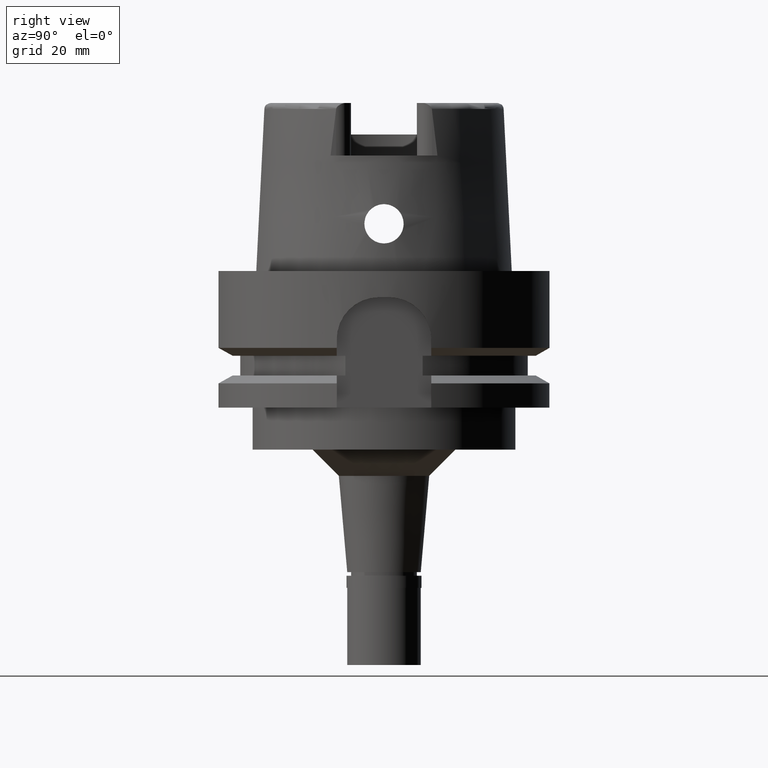
[diagram: clean part render]
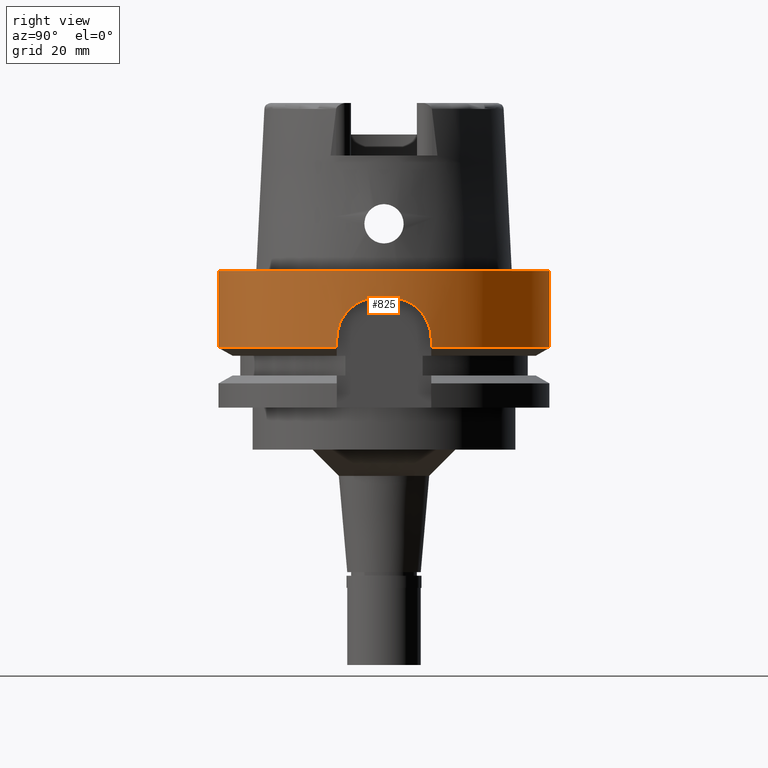
[diagram: same view with one face highlighted and labeled with its STEP entity id]
A machine part, right view. The second image highlights one B-rep face of the part: STEP entity #825.
In plain terms, the highlighted cylindrical surface (partial cylindrical patch) has radius 31.5 mm, axis along (0, 0, -1).
Its self-contained STEP definition (entity closure, byte-faithful):
#42 = AXIS2_PLACEMENT_3D ( 'NONE', #1047, #2665, #250 ) ;
#50 = CARTESIAN_POINT ( 'NONE',  ( 31.24687938001111576, -3.985291265408441141, -5.577833576218049316 ) ) ;
#77 = CARTESIAN_POINT ( 'NONE',  ( 31.03663338896203072, -5.383085971305877848, -6.307531101762081427 ) ) ;
#100 = CARTESIAN_POINT ( 'NONE',  ( 30.66990771780841385, 7.185142284055380912, -7.924462839048147522 ) ) ;
#110 = LINE ( 'NONE', #1784, #3415 ) ;
#165 = VERTEX_POINT ( 'NONE', #1374 ) ;
#166 = CARTESIAN_POINT ( 'NONE',  ( 30.55771606880380631, -7.646959450473945985, -8.548265564430101549 ) ) ;
#237 = ORIENTED_EDGE ( 'NONE', *, *, #5407, .T. ) ;
#246 = CARTESIAN_POINT ( 'NONE',  ( 31.19830764900061837, 4.349374766113800916, -5.734631626783922798 ) ) ;
#250 = DIRECTION ( 'NONE',  ( 0.9994959677099152229, -0.03174603174603050915, 0.0000000000000000000 ) ) ;
#272 = CARTESIAN_POINT ( 'NONE',  ( 30.76152530361977000, 6.780916203790079422, -7.469740641438774809 ) ) ;
#292 = CIRCLE ( 'NONE', #3411, 31.50000000000000000 ) ;
#294 = CARTESIAN_POINT ( 'NONE',  ( 31.02066603836044223, 5.474329072268528940, -6.368229471646835727 ) ) ;
#378 = CIRCLE ( 'NONE', #1448, 31.50000000000000000 ) ;
#414 = CARTESIAN_POINT ( 'NONE',  ( 31.24176585737185263, -4.025176123445787013, -5.594030543687593671 ) ) ;
#438 = CARTESIAN_POINT ( 'NONE',  ( 31.26787757542903634, -3.817534775490746046, -5.512029043177398613 ) ) ;
#475 = VERTEX_POINT ( 'NONE', #2315 ) ;
#517 = CARTESIAN_POINT ( 'NONE',  ( 30.54753625321615829, 7.687536831746576205, -8.609442937876890412 ) ) ;
#540 = CARTESIAN_POINT ( 'NONE',  ( 30.37173246492110934, -8.355120942538919238, -9.852969525771435144 ) ) ;
#556 = CARTESIAN_POINT ( 'NONE',  ( 0.0000000000000000000, 31.50000000000000000, -8.526512829120999020E-14 ) ) ;
#570 = CARTESIAN_POINT ( 'NONE',  ( 30.26161690574021534, 8.747813545730732443, -10.98959365609194982 ) ) ;
#590 = ORIENTED_EDGE ( 'NONE', *, *, #2594, .T. ) ;
#604 = DIRECTION ( 'NONE',  ( 0.9583148474999051425, 0.2857142857143015191, 0.0000000000000000000 ) ) ;
#611 = ORIENTED_EDGE ( 'NONE', *, *, #4717, .F. ) ;
#657 = CARTESIAN_POINT ( 'NONE',  ( 30.77754393720804060, 6.707677379746503021, -7.394413715984227586 ) ) ;
#658 = CIRCLE ( 'NONE', #5136, 31.49999999999999645 ) ;
#664 = VECTOR ( 'NONE', #3025, 1000.000000000000114 ) ;
#710 = CARTESIAN_POINT ( 'NONE',  ( 30.99287102277044426, 5.628874553798541847, -6.474980328917061101 ) ) ;
#736 = CARTESIAN_POINT ( 'NONE',  ( 31.43990740103026837, 2.002766499533835010, -5.045690452841622431 ) ) ;
#741 = ORIENTED_EDGE ( 'NONE', *, *, #5475, .T. ) ;
#773 = CARTESIAN_POINT ( 'NONE',  ( 31.10391398704768307, 4.984596422423819284, -6.057874074344601567 ) ) ;
#783 = VERTEX_POINT ( 'NONE', #556 ) ;
#808 = CARTESIAN_POINT ( 'NONE',  ( 30.18691769625000276, 9.000000000000000000, -13.00000000000000000 ) ) ;
#825 = ADVANCED_FACE ( 'NONE', ( #3106 ), #4860, .T. ) ;
#854 = CARTESIAN_POINT ( 'NONE',  ( 31.37939177554326164, -2.758543164315538032, -5.191344037738682360 ) ) ;
#898 = CARTESIAN_POINT ( 'NONE',  ( 0.0000000000000000000, 0.0000000000000000000, -8.526512829120999020E-14 ) ) ;
#902 = CARTESIAN_POINT ( 'NONE',  ( 31.35587011279374181, -3.015409690127095477, -5.253394741033034165 ) ) ;
#983 = CARTESIAN_POINT ( 'NONE',  ( 30.55144727242057812, 7.671968214092109051, -8.585835338945560835 ) ) ;
#1011 = CIRCLE ( 'NONE', #42, 31.49999999999999289 ) ;
#1012 = CARTESIAN_POINT ( 'NONE',  ( 30.48014070860743985, -7.951930726964334006, -9.032567008681398946 ) ) ;
#1045 = CARTESIAN_POINT ( 'NONE',  ( 30.56289023227948931, -7.626264970550717059, -8.517491330712550379 ) ) ;
#1047 = CARTESIAN_POINT ( 'NONE',  ( 0.0000000000000000000, 0.0000000000000000000, -5.000000000000000000 ) ) ;
#1049 = VERTEX_POINT ( 'NONE', #3924 ) ;
#1124 = CARTESIAN_POINT ( 'NONE',  ( 31.48412298285999711, 1.000000000000000000, -5.000000000000000000 ) ) ;
#1148 = CARTESIAN_POINT ( 'NONE',  ( 31.02095685529104685, 5.472681235345779882, -6.367118005371517064 ) ) ;
#1152 = ORIENTED_EDGE ( 'NONE', *, *, #4121, .F. ) ;
#1177 = CARTESIAN_POINT ( 'NONE',  ( 31.00838763514320817, 5.543239698562190121, -6.415216454848081007 ) ) ;
#1212 = CARTESIAN_POINT ( 'NONE',  ( 30.69056205454007724, 7.096467399195472758, -7.817859600856947644 ) ) ;
#1243 = CARTESIAN_POINT ( 'NONE',  ( 31.21172190527136792, -4.257593064229901358, -5.689537498468898669 ) ) ;
#1297 = CARTESIAN_POINT ( 'NONE',  ( 31.48412298285999711, -1.000000000000000000, -5.000000000000000000 ) ) ;
#1305 = CARTESIAN_POINT ( 'NONE',  ( 31.02747474531977190, -5.435606110909116495, -6.342267685893631324 ) ) ;
#1334 = CARTESIAN_POINT ( 'NONE',  ( 31.10830744538199255, -4.953066644807145202, -6.043514509546229263 ) ) ;
#1355 = CARTESIAN_POINT ( 'NONE',  ( 30.63637741720181751, -7.326799604790024567, -8.102164693304326093 ) ) ;
#1374 = CARTESIAN_POINT ( 'NONE',  ( 30.18691774053999666, 8.999999851454999700, -14.62250212334000032 ) ) ;
#1383 = CARTESIAN_POINT ( 'NONE',  ( 30.35411553624175340, 8.418901403862738775, -10.00664235424467741 ) ) ;
#1413 = CARTESIAN_POINT ( 'NONE',  ( 0.0000000000000000000, 0.0000000000000000000, -14.62250092523999889 ) ) ;
#1437 = CARTESIAN_POINT ( 'NONE',  ( 30.38338092873630103, -8.312749700974594091, -9.754962950919464859 ) ) ;
#1448 = AXIS2_PLACEMENT_3D ( 'NONE', #898, #1768, #1741 ) ;
#1469 = CARTESIAN_POINT ( 'NONE',  ( 30.41128288604779684, 8.211240704876001217, -9.526228653693573634 ) ) ;
#1498 = CARTESIAN_POINT ( 'NONE',  ( 30.55749398380238091, -7.647847164670921849, -8.549590074612986257 ) ) ;
#1547 = CARTESIAN_POINT ( 'NONE',  ( 31.46846379500258095, 1.493015796473515122, -4.999999999999996447 ) ) ;
#1575 = CARTESIAN_POINT ( 'NONE',  ( 30.78200704048748193, 6.687157135373752226, -7.373608385607173688 ) ) ;
#1578 = CARTESIAN_POINT ( 'NONE',  ( 0.0000000000000000000, -31.50000000000000000, -4.736951571733999556E-14 ) ) ;
#1629 = CARTESIAN_POINT ( 'NONE',  ( 31.22287107270178197, 4.169376715785865883, -5.654484666982455998 ) ) ;
#1695 = CARTESIAN_POINT ( 'NONE',  ( 31.00741827448460697, -5.550091455193249423, -6.418563727440270483 ) ) ;
#1741 = DIRECTION ( 'NONE',  ( 0.0000000000000000000, 1.000000000000000000, 0.0000000000000000000 ) ) ;
#1768 = DIRECTION ( 'NONE',  ( 0.0000000000000000000, 0.0000000000000000000, -1.000000000000000000 ) ) ;
#1773 = CARTESIAN_POINT ( 'NONE',  ( 31.02965729964064678, -5.423132638685575380, -6.333971617469956961 ) ) ;
#1784 = CARTESIAN_POINT ( 'NONE',  ( 0.0000000000000000000, 31.50000000000000000, -4.736951571733999556E-14 ) ) ;
#1795 = CARTESIAN_POINT ( 'NONE',  ( 30.36687230965197770, -8.372751649771622340, -9.894720646842278811 ) ) ;
#1804 = DIRECTION ( 'NONE',  ( 0.0000000000000000000, 2.672583210396999878E-14, -1.000000000000000000 ) ) ;
#1825 = CARTESIAN_POINT ( 'NONE',  ( 30.50400320114669128, 7.858762822755440247, -8.881493206522518946 ) ) ;
#1860 = CARTESIAN_POINT ( 'NONE',  ( 30.51662501741496314, -7.811144113242773912, -8.793814999328821713 ) ) ;
#1886 = CARTESIAN_POINT ( 'NONE',  ( 30.59373182601257923, -7.501974381459835861, -8.338712562017143171 ) ) ;
#1905 = VECTOR ( 'NONE', #2231, 1000.000000000000114 ) ;
#1916 = CARTESIAN_POINT ( 'NONE',  ( 30.35609876729458989, 8.411739697504220459, -9.988964142691903803 ) ) ;
#1947 = CARTESIAN_POINT ( 'NONE',  ( 31.30264939465369878, 3.558377190688084557, -5.399541616252045984 ) ) ;
#1971 = CARTESIAN_POINT ( 'NONE',  ( 30.77986096721526721, 6.697028787168499697, -7.383605368533237012 ) ) ;
#1993 = CARTESIAN_POINT ( 'NONE',  ( 30.97106086097794631, 5.747260771080332731, -6.560049647500876269 ) ) ;
#2083 = CARTESIAN_POINT ( 'NONE',  ( 30.85865826104710408, -6.323320754447629533, -7.027656642049796787 ) ) ;
#2107 = CARTESIAN_POINT ( 'NONE',  ( 0.0000000000000000000, -31.50000000000000000, -14.62250092523999889 ) ) ;
#2111 = CARTESIAN_POINT ( 'NONE',  ( 31.31585705825397525, -3.400706056999426963, -5.367532984531509399 ) ) ;
#2133 = CARTESIAN_POINT ( 'NONE',  ( 30.80217010454135362, -6.593658677520702227, -7.280561479973099104 ) ) ;
#2189 = CARTESIAN_POINT ( 'NONE',  ( 31.44049564296073740, -1.992538567141135974, -5.044800745197013825 ) ) ;
#2212 = CARTESIAN_POINT ( 'NONE',  ( 30.57921095031634451, 7.561332524538051381, -8.418750499239976648 ) ) ;
#2231 = DIRECTION ( 'NONE',  ( -1.276661083239999966E-07, -4.282039921553000612E-07, -0.9999999999999001910 ) ) ;
#2236 = CARTESIAN_POINT ( 'NONE',  ( 30.20114611710526376, 8.954848057436828768, -12.00617963477399108 ) ) ;
#2242 = VERTEX_POINT ( 'NONE', #3210 ) ;
#2254 = DIRECTION ( 'NONE',  ( 0.0000000000000000000, 0.0000000000000000000, -1.000000000000000000 ) ) ;
#2302 = CARTESIAN_POINT ( 'NONE',  ( 30.18691769625000276, 9.000000000000000000, -13.00000000000000000 ) ) ;
#2315 = CARTESIAN_POINT ( 'NONE',  ( 0.0000000000000000000, 31.50000000000000000, -14.62250092523999889 ) ) ;
#2323 = CARTESIAN_POINT ( 'NONE',  ( 30.39389350032747217, -8.274269751058909605, -9.669990427076180950 ) ) ;
#2350 = CARTESIAN_POINT ( 'NONE',  ( 31.01706524707299906, 5.494674945972460200, -6.381992754615974484 ) ) ;
#2397 = EDGE_CURVE ( 'NONE', #783, #4905, #378, .T. ) ;
#2404 = CARTESIAN_POINT ( 'NONE',  ( 30.99947644608769437, 5.592619688610819928, -6.449469519484402724 ) ) ;
#2521 = VERTEX_POINT ( 'NONE', #1297 ) ;
#2524 = CARTESIAN_POINT ( 'NONE',  ( 31.04584616726749502, -5.329778440589145738, -6.272792448610146288 ) ) ;
#2556 = CARTESIAN_POINT ( 'NONE',  ( 30.81476669147206948, -6.534540561240474332, -7.223090249304642718 ) ) ;
#2594 = EDGE_CURVE ( 'NONE', #3752, #1049, #292, .T. ) ;
#2604 = CARTESIAN_POINT ( 'NONE',  ( 30.97763310886772814, -5.714777636017068119, -6.531627578985174765 ) ) ;
#2663 = DIRECTION ( 'NONE',  ( 0.0000000000000000000, 0.0000000000000000000, 1.000000000000000000 ) ) ;
#2665 = DIRECTION ( 'NONE',  ( 0.0000000000000000000, 0.0000000000000000000, 1.000000000000000000 ) ) ;
#2721 = CARTESIAN_POINT ( 'NONE',  ( 30.43104810177245056, -8.136971568267822974, -9.383219224639788081 ) ) ;
#2737 = AXIS2_PLACEMENT_3D ( 'NONE', #4039, #2254, #5284 ) ;
#2751 = CARTESIAN_POINT ( 'NONE',  ( 30.18691769624999921, -9.000000000000000000, -12.01248494604021744 ) ) ;
#2772 = CARTESIAN_POINT ( 'NONE',  ( 30.55857113979710604, -7.643541479677820050, -8.543166367376496595 ) ) ;
#2802 = LINE ( 'NONE', #1578, #4346 ) ;
#2828 = CARTESIAN_POINT ( 'NONE',  ( 31.06446036320372883, 5.225982844671182015, -6.200852855418431453 ) ) ;
#2852 = CARTESIAN_POINT ( 'NONE',  ( 31.02090811070118548, 5.472957984057215342, -6.367304303434701218 ) ) ;
#2882 = CARTESIAN_POINT ( 'NONE',  ( 31.22918764763658217, 4.121686750499744534, -5.634169962622682881 ) ) ;
#2922 = ORIENTED_EDGE ( 'NONE', *, *, #4061, .F. ) ;
#2946 = CARTESIAN_POINT ( 'NONE',  ( 31.12693301984928596, -4.834463125074305090, -5.977586109290665917 ) ) ;
#2961 = CARTESIAN_POINT ( 'NONE',  ( 30.18691774053999666, 8.999999851454999700, -14.62250212334000032 ) ) ;
#2975 = CARTESIAN_POINT ( 'NONE',  ( 31.24381496217788623, -4.009224169165636731, -5.587534548788223532 ) ) ;
#3025 = DIRECTION ( 'NONE',  ( -2.729550179190972532E-08, 9.155299747315917051E-08, 0.9999999999999954481 ) ) ;
#3034 = CARTESIAN_POINT ( 'NONE',  ( 31.07897925252866145, -5.133008860720710054, -6.149956618641071238 ) ) ;
#3054 = EDGE_CURVE ( 'NONE', #783, #475, #110, .T. ) ;
#3093 = CARTESIAN_POINT ( 'NONE',  ( 30.38261841401334351, 8.315908069769299971, -9.754327162395087569 ) ) ;
#3106 = FACE_OUTER_BOUND ( 'NONE', #3599, .T. ) ;
#3121 = CARTESIAN_POINT ( 'NONE',  ( 30.54322342631790477, 7.704674039202510372, -8.635609545597695558 ) ) ;
#3125 = ORIENTED_EDGE ( 'NONE', *, *, #3054, .F. ) ;
#3147 = CARTESIAN_POINT ( 'NONE',  ( 30.24383137967110358, 8.809284594501127330, -11.24446710201759991 ) ) ;
#3181 = CARTESIAN_POINT ( 'NONE',  ( 30.35061401079691379, 8.431535095304518279, -10.03814683637157934 ) ) ;
#3209 = CARTESIAN_POINT ( 'NONE',  ( 30.36230289799670601, -8.389310405889876421, -9.934321230899845645 ) ) ;
#3210 = CARTESIAN_POINT ( 'NONE',  ( 30.18691769625000276, -9.000000000000000000, -13.00000000000000000 ) ) ;
#3290 = CARTESIAN_POINT ( 'NONE',  ( 31.15745290136642964, 4.633750881113773978, -5.871649223816405971 ) ) ;
#3404 = CARTESIAN_POINT ( 'NONE',  ( 30.91812910349273125, -6.025333896056379146, -6.773985085413399609 ) ) ;
#3411 = AXIS2_PLACEMENT_3D ( 'NONE', #3595, #3994, #4449 ) ;
#3414 = LINE ( 'NONE', #2961, #664 ) ;
#3415 = VECTOR ( 'NONE', #1804, 1000.000000000000000 ) ;
#3429 = CARTESIAN_POINT ( 'NONE',  ( 31.29466789088022338, -3.593348569579596585, -5.429864349621083441 ) ) ;
#3482 = ORIENTED_EDGE ( 'NONE', *, *, #2397, .T. ) ;
#3483 = CARTESIAN_POINT ( 'NONE',  ( 30.73900558653029691, -6.886225106963181908, -7.572241330652221158 ) ) ;
#3510 = CARTESIAN_POINT ( 'NONE',  ( 30.29363085266459521, 8.635183027582552739, -10.60802022644966058 ) ) ;
#3545 = CARTESIAN_POINT ( 'NONE',  ( 30.53467374995810957, 7.738549694284758473, -8.687905603260004384 ) ) ;
#3574 = CARTESIAN_POINT ( 'NONE',  ( 30.36366154914119164, -8.384389370006925191, -9.922497703902317667 ) ) ;
#3589 = CARTESIAN_POINT ( 'NONE',  ( 0.0000000000000000000, -31.50000000000000000, -8.526512829120999020E-14 ) ) ;
#3595 = CARTESIAN_POINT ( 'NONE',  ( 0.0000000000000000000, 0.0000000000000000000, -14.62250092523999889 ) ) ;
#3599 = EDGE_LOOP ( 'NONE', ( #3614, #3125, #3482, #741, #590, #4009, #2922, #237, #1152, #611 ) ) ;
#3614 = ORIENTED_EDGE ( 'NONE', *, *, #4094, .T. ) ;
#3626 = LINE ( 'NONE', #4840, #1905 ) ;
#3631 = CARTESIAN_POINT ( 'NONE',  ( 30.45983680090113666, 8.028572497881095060, -9.176854879873170390 ) ) ;
#3661 = CARTESIAN_POINT ( 'NONE',  ( 31.23435063214421703, 4.082333884444327765, -5.617636282292616023 ) ) ;
#3686 = CARTESIAN_POINT ( 'NONE',  ( 30.84394237699336472, 6.401882289729222464, -7.085701726471389961 ) ) ;
#3715 = CARTESIAN_POINT ( 'NONE',  ( 31.01259399319087606, 5.519799587894995696, -6.399093891684365154 ) ) ;
#3752 = VERTEX_POINT ( 'NONE', #2107 ) ;
#3768 = CARTESIAN_POINT ( 'NONE',  ( 31.35700020085583617, 3.035448773395014843, -5.245418817531988687 ) ) ;
#3833 = CARTESIAN_POINT ( 'NONE',  ( 31.02798795624131145, -5.432675544494535380, -6.340315865417981200 ) ) ;
#3858 = CARTESIAN_POINT ( 'NONE',  ( 30.79668469468603220, -6.619223242131302420, -7.305750730116521652 ) ) ;
#3881 = B_SPLINE_CURVE_WITH_KNOTS ( 'NONE', 3,
 ( #3889, #5182, #2189, #854, #902, #2111, #3429, #438, #5101, #50, #2975, #414, #4762, #1243, #3914, #2946, #1334, #3034, #5152, #2524, #77, #4285, #1773, #4683, #3833, #1305, #1695, #2604, #3404, #4371, #2083, #5535, #4337, #2556, #2133, #3858, #4739, #4309, #3483, #5206, #1355, #3965, #1886, #4454, #3999, #1045, #5301, #2772, #166, #1498, #1860, #1012, #2721, #4421, #2323, #1437, #540, #1795, #3574, #3209, #4481, #2751, #4027 ),
 .UNSPECIFIED., .F., .F.,
 ( 4, 2, 2, 1, 1, 1, 1, 2, 2, 2, 2, 1, 1, 1, 1, 1, 2, 2, 2, 2, 2, 1, 1, 2, 2, 2, 2, 1, 1, 1, 1, 2, 2, 2, 2, 1, 1, 2, 2, 4 ),
 ( 0.0000000000000000000, 0.1249999999999742706, 0.1874999999999613087, 0.2187499999999547584, 0.2343749999999515110, 0.2421874999999498457, 0.2460937499999489575, 0.2480468749999484857, 0.2499999999999480416, 0.3124999999999294453, 0.3437499999999201750, 0.3593749999999155675, 0.3671874999999133471, 0.3710937499999122369, 0.3730468749999115707, 0.3740234374999112932, 0.3745117187499111822, 0.3749999999999111266, 0.4374999999999175659, 0.4687499999999207856, 0.4843749999999223954, 0.4921874999999232281, 0.4960937499999236722, 0.4980468749999239497, 0.4999999999999242828, 0.5624999999999343858, 0.5937499999999396039, 0.6093749999999423794, 0.6171874999999440448, 0.6210937499999447109, 0.6230468749999451550, 0.6240234374999452660, 0.6249999999999453770, 0.6874999999999550360, 0.7187499999999598099, 0.7343749999999622524, 0.7421874999999632516, 0.7460937499999636957, 0.7499999999999640288, 1.000000000000000000 ),
 .UNSPECIFIED. ) ;
#3889 = CARTESIAN_POINT ( 'NONE',  ( 31.48412298285999711, -1.000000000000000000, -5.000000000000000000 ) ) ;
#3914 = CARTESIAN_POINT ( 'NONE',  ( 31.18003008094636286, -4.484017143758451063, -5.793666550739885679 ) ) ;
#3924 = CARTESIAN_POINT ( 'NONE',  ( 30.18691748910999806, -9.000000694758998776, -14.62249532146999975 ) ) ;
#3938 = CARTESIAN_POINT ( 'NONE',  ( 30.61213634633550384, 7.428749924917904757, -8.231412726213331865 ) ) ;
#3949 = B_SPLINE_CURVE_WITH_KNOTS ( 'NONE', 3,
 ( #2302, #4906, #2236, #3147, #570, #3510, #5329, #5271, #4393, #3181, #1383, #1916, #3093, #1469, #3631, #4874, #1825, #5357, #3545, #3121, #517, #4846, #4933, #983, #2212, #3938, #100, #1212, #5067, #5037, #272, #4510, #657, #1971, #5441, #1575, #3686, #5010, #4960, #1993, #710, #2404, #1177, #3715, #2350, #4130, #5498, #294, #1148, #2852, #2828, #773, #3290, #4541, #246, #4595, #1629, #2882, #4082, #5411, #3661, #1947, #3768, #736, #1547, #1124 ),
 .UNSPECIFIED., .F., .F.,
 ( 4, 2, 2, 1, 1, 1, 2, 2, 2, 2, 1, 1, 1, 1, 2, 2, 2, 2, 1, 1, 1, 1, 2, 2, 2, 2, 2, 1, 1, 1, 1, 2, 2, 2, 2, 1, 1, 1, 2, 2, 2, 4 ),
 ( 0.0000000000000000000, 0.1249999999999105715, 0.1874999999998658851, 0.2187499999998435418, 0.2343749999998325229, 0.2421874999998268330, 0.2460937499998241129, 0.2499999999998213651, 0.3124999999997839506, 0.3437499999997650213, 0.3593749999997558064, 0.3671874999997511990, 0.3710937499997487565, 0.3730468749997474243, 0.3740234374997469802, 0.3749999999997464806, 0.4374999999997427058, 0.4687499999997408739, 0.4843749999997399858, 0.4921874999997395972, 0.4960937499997393751, 0.4980468749997393196, 0.4990234374997392641, 0.4999999999997390976, 0.5624999999997285505, 0.5937499999997233324, 0.6093749999997204458, 0.6171874999997188915, 0.6210937499997180034, 0.6230468749997175593, 0.6240234374997176703, 0.6245117187497180034, 0.6249999999997182254, 0.6874999999997623013, 0.7187499999997842837, 0.7343749999997953859, 0.7421874999998007150, 0.7460937499998032685, 0.7480468749998047118, 0.7499999999998060440, 0.8749999999999029665, 1.000000000000000000 ),
 .UNSPECIFIED. ) ;
#3965 = CARTESIAN_POINT ( 'NONE',  ( 30.61845233137862721, -7.401004021611638173, -8.199975701942872064 ) ) ;
#3993 = CARTESIAN_POINT ( 'NONE',  ( 31.48412298285999711, 1.000000000000000000, -5.000000000000000000 ) ) ;
#3994 = DIRECTION ( 'NONE',  ( 0.0000000000000000000, 0.0000000000000000000, 1.000000000000000000 ) ) ;
#3999 = CARTESIAN_POINT ( 'NONE',  ( 30.56907325349793680, -7.601491753736035584, -8.480991841345550952 ) ) ;
#4009 = ORIENTED_EDGE ( 'NONE', *, *, #4236, .F. ) ;
#4027 = CARTESIAN_POINT ( 'NONE',  ( 30.18691769625000276, -9.000000000000000000, -13.00000000000000000 ) ) ;
#4039 = CARTESIAN_POINT ( 'NONE',  ( 0.0000000000000000000, 0.0000000000000000000, 37.15000000000000568 ) ) ;
#4061 = EDGE_CURVE ( 'NONE', #2521, #2242, #3881, .T. ) ;
#4082 = CARTESIAN_POINT ( 'NONE',  ( 31.23186169539032875, 4.101336790953094003, -5.625600766105895545 ) ) ;
#4094 = EDGE_CURVE ( 'NONE', #165, #475, #658, .T. ) ;
#4121 = EDGE_CURVE ( 'NONE', #5079, #4275, #3949, .T. ) ;
#4130 = CARTESIAN_POINT ( 'NONE',  ( 31.01919183305400551, 5.482672019840133082, -6.373863834449784882 ) ) ;
#4236 = EDGE_CURVE ( 'NONE', #2242, #1049, #3626, .T. ) ;
#4275 = VERTEX_POINT ( 'NONE', #3993 ) ;
#4285 = CARTESIAN_POINT ( 'NONE',  ( 31.03198899661370191, -5.409777652458331865, -6.325121157126668336 ) ) ;
#4309 = CARTESIAN_POINT ( 'NONE',  ( 30.79087504920077834, -6.646208255580307700, -7.332510431538213247 ) ) ;
#4337 = CARTESIAN_POINT ( 'NONE',  ( 30.82521627558685395, -6.484828166089278589, -7.176027674952049296 ) ) ;
#4346 = VECTOR ( 'NONE', #5413, 1000.000000000000000 ) ;
#4371 = CARTESIAN_POINT ( 'NONE',  ( 30.89582339220945073, -6.139337515252231370, -6.866996978293570919 ) ) ;
#4393 = CARTESIAN_POINT ( 'NONE',  ( 30.34540340745634524, 8.450320568087350992, -10.08542724235093324 ) ) ;
#4421 = CARTESIAN_POINT ( 'NONE',  ( 30.41562287555681721, -8.194299434954828598, -9.498869852754955545 ) ) ;
#4449 = DIRECTION ( 'NONE',  ( 0.0000000000000000000, -1.000000000000000000, 0.0000000000000000000 ) ) ;
#4454 = CARTESIAN_POINT ( 'NONE',  ( 30.58191335417173917, -7.549874250890652227, -8.406090253227624487 ) ) ;
#4481 = CARTESIAN_POINT ( 'NONE',  ( 30.24477673187777782, -8.814620088831377487, -10.96570574564536216 ) ) ;
#4510 = CARTESIAN_POINT ( 'NONE',  ( 30.77216618763818445, 6.732337585254058787, -7.419586730883776404 ) ) ;
#4541 = CARTESIAN_POINT ( 'NONE',  ( 31.17435895256481970, 4.518657888830856173, -5.814277882425350263 ) ) ;
#4595 = CARTESIAN_POINT ( 'NONE',  ( 31.20992940212805067, 4.265570889579738179, -5.696411155626879719 ) ) ;
#4683 = CARTESIAN_POINT ( 'NONE',  ( 31.02865596505244739, -5.428858128061023969, -6.337776577097463893 ) ) ;
#4717 = EDGE_CURVE ( 'NONE', #165, #5079, #3414, .T. ) ;
#4739 = CARTESIAN_POINT ( 'NONE',  ( 30.79300844976040352, -6.636315667546494268, -7.322668735378648819 ) ) ;
#4762 = CARTESIAN_POINT ( 'NONE',  ( 31.24058206343746136, -4.034358361687703010, -5.597789328610295989 ) ) ;
#4840 = CARTESIAN_POINT ( 'NONE',  ( 30.18691769625000276, -9.000000000000000000, -13.00000000000000000 ) ) ;
#4846 = CARTESIAN_POINT ( 'NONE',  ( 30.54939274804078764, 7.680149427421776309, -8.598224937570899229 ) ) ;
#4860 = CYLINDRICAL_SURFACE ( 'NONE', #2737, 31.50000000000000000 ) ;
#4874 = CARTESIAN_POINT ( 'NONE',  ( 30.47694764031919235, 7.963405964173718488, -9.059203120555510580 ) ) ;
#4905 = VERTEX_POINT ( 'NONE', #3589 ) ;
#4906 = CARTESIAN_POINT ( 'NONE',  ( 30.18691769624999566, 9.000000000000001776, -12.50993811617021301 ) ) ;
#4933 = CARTESIAN_POINT ( 'NONE',  ( 30.55063222024378078, 7.675214942794530870, -8.590745466589755353 ) ) ;
#4960 = CARTESIAN_POINT ( 'NONE',  ( 30.95386223066197928, 5.839048076892018102, -6.628120041063015222 ) ) ;
#5010 = CARTESIAN_POINT ( 'NONE',  ( 30.89429077235115884, 6.148796790496091624, -6.871472149326764089 ) ) ;
#5037 = CARTESIAN_POINT ( 'NONE',  ( 30.74070199606816089, 6.875140363397479248, -7.569230667251459543 ) ) ;
#5067 = CARTESIAN_POINT ( 'NONE',  ( 30.72363937899864794, 6.950993358282545387, -7.652939918408625530 ) ) ;
#5079 = VERTEX_POINT ( 'NONE', #808 ) ;
#5101 = CARTESIAN_POINT ( 'NONE',  ( 31.25396501265799998, -3.929414185715592200, -5.555498735869920601 ) ) ;
#5136 = AXIS2_PLACEMENT_3D ( 'NONE', #1413, #2663, #604 ) ;
#5152 = CARTESIAN_POINT ( 'NONE',  ( 31.06396769831390614, -5.223487772696267406, -6.205064867027914488 ) ) ;
#5182 = CARTESIAN_POINT ( 'NONE',  ( 31.46861672679770905, -1.488200872943560737, -4.999999999999999112 ) ) ;
#5206 = CARTESIAN_POINT ( 'NONE',  ( 30.69448692140890245, -7.081002528654545713, -7.795180697734011233 ) ) ;
#5271 = CARTESIAN_POINT ( 'NONE',  ( 30.33353712678212233, 8.493000123903751586, -10.19590533102055119 ) ) ;
#5284 = DIRECTION ( 'NONE',  ( 0.0000000000000000000, -1.000000000000000000, 0.0000000000000000000 ) ) ;
#5301 = CARTESIAN_POINT ( 'NONE',  ( 30.55985797894987499, -7.638396505383104440, -8.535500208821451551 ) ) ;
#5329 = CARTESIAN_POINT ( 'NONE',  ( 30.31097174058195876, 8.573765026055690797, -10.41742161343481143 ) ) ;
#5357 = CARTESIAN_POINT ( 'NONE',  ( 30.51787830698553705, 7.804718180916059289, -8.792331262658105828 ) ) ;
#5407 = EDGE_CURVE ( 'NONE', #2521, #4275, #1011, .T. ) ;
#5411 = CARTESIAN_POINT ( 'NONE',  ( 31.23363704816178910, 4.087789987550275228, -5.619918229141262600 ) ) ;
#5413 = DIRECTION ( 'NONE',  ( 0.0000000000000000000, -2.672583210396999878E-14, -1.000000000000000000 ) ) ;
#5441 = CARTESIAN_POINT ( 'NONE',  ( 30.78140838281819924, 6.689911912048466469, -7.376395453863757723 ) ) ;
#5475 = EDGE_CURVE ( 'NONE', #4905, #3752, #2802, .T. ) ;
#5498 = CARTESIAN_POINT ( 'NONE',  ( 31.02022786580450742, 5.476810874661652839, -6.369904117917348785 ) ) ;
#5535 = CARTESIAN_POINT ( 'NONE',  ( 30.84565212328675088, -6.386802730448261300, -7.084737456288356938 ) ) ;